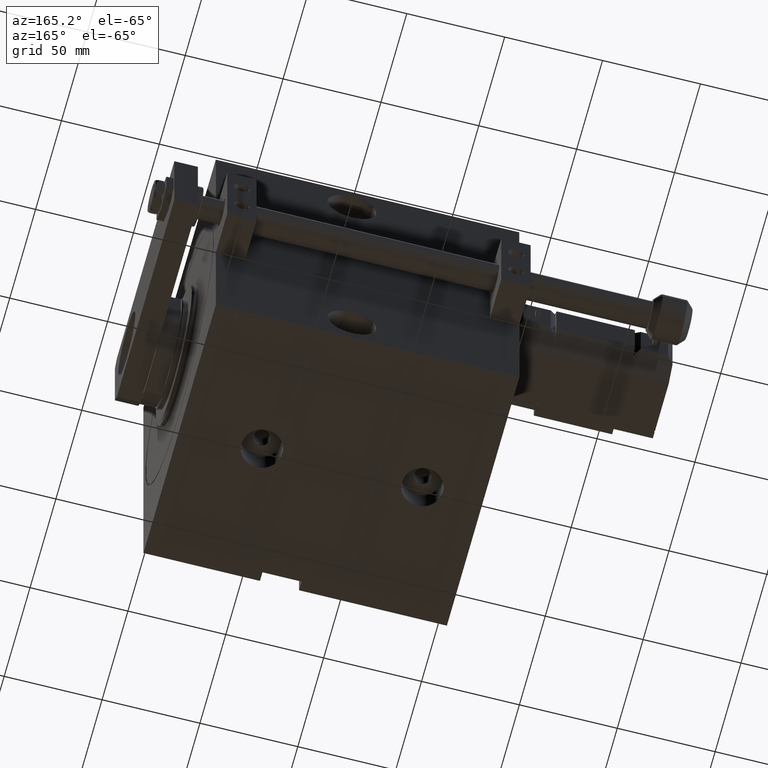
[diagram: clean part render]
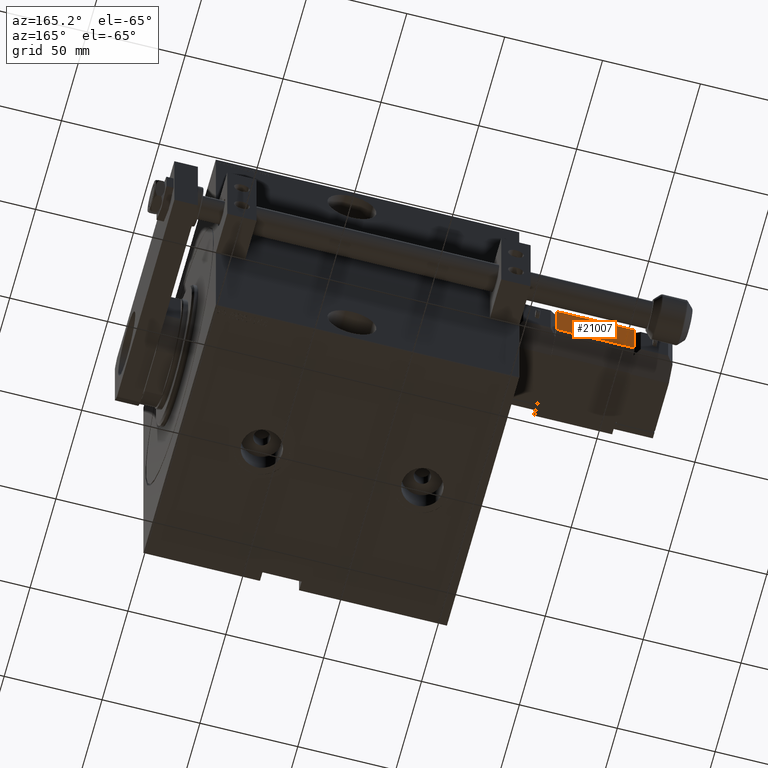
[diagram: same view with one face highlighted and labeled with its STEP entity id]
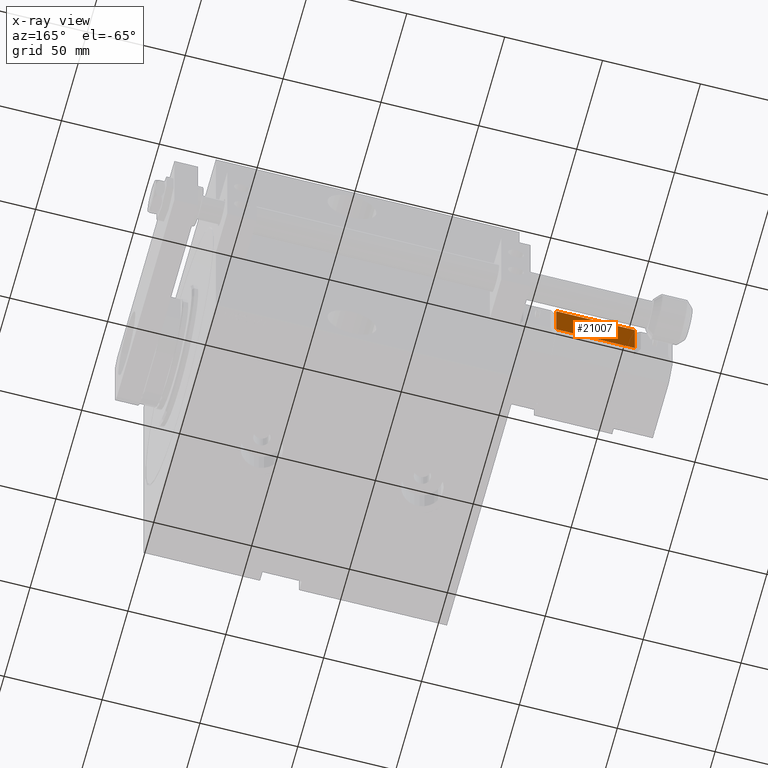
[diagram: x-ray of the same camera — body ghosted, the highlighted face saturated]
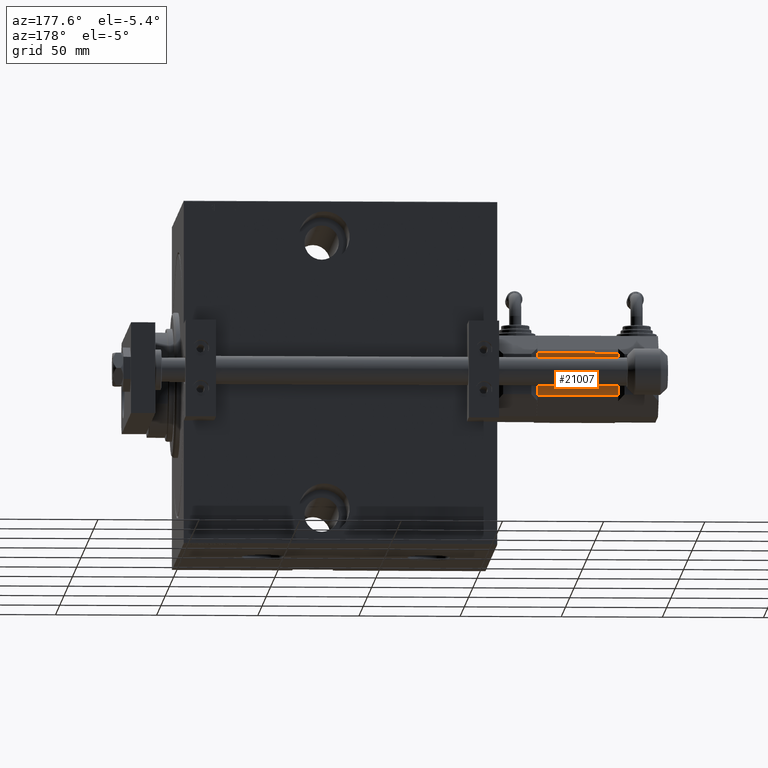
[diagram: same view with one face highlighted and labeled with its STEP entity id]
A machine part, auxiliary view. The second image highlights one B-rep face of the part: STEP entity #21007.
The next image is the same camera in x-ray: the body ghosted, the highlighted face saturated — about 0% of this face is hidden behind the body in this view.
A second angle (auxiliary view) of the same face is appended — the face is thin or edge-on in the first view.
In plain terms, the highlighted planar face has unit normal (0, -1, 0).
Its self-contained STEP definition (entity closure, byte-faithful):
#1265 = VECTOR ( 'NONE', #49139, 1000.000000000000000 ) ;
#1801 = AXIS2_PLACEMENT_3D ( 'NONE', #38108, #3489, #18899 ) ;
#2382 = ORIENTED_EDGE ( 'NONE', *, *, #33044, .T. ) ;
#3489 = DIRECTION ( 'NONE',  ( -8.673617379884035472E-17, -1.000000000000000000, 0.000000000000000000 ) ) ;
#8923 = VERTEX_POINT ( 'NONE', #22558 ) ;
#10317 = CARTESIAN_POINT ( 'NONE',  ( -20.00000000000000000, 22.00000000000000000, 40.00000000000000000 ) ) ;
#11481 = LINE ( 'NONE', #19049, #1265 ) ;
#12900 = CARTESIAN_POINT ( 'NONE',  ( 10.49999999999997868, 21.99999999999999645, 40.00000000000000000 ) ) ;
#13280 = LINE ( 'NONE', #41052, #18970 ) ;
#14710 = EDGE_LOOP ( 'NONE', ( #22143, #2382, #15476, #39971 ) ) ;
#14715 = CARTESIAN_POINT ( 'NONE',  ( -10.49999999999996270, 22.00000000000000000, 40.00000000000000000 ) ) ;
#15476 = ORIENTED_EDGE ( 'NONE', *, *, #47597, .F. ) ;
#18899 = DIRECTION ( 'NONE',  ( 1.000000000000000000, -8.673617379884035472E-17, 0.000000000000000000 ) ) ;
#18970 = VECTOR ( 'NONE', #28948, 1000.000000000000000 ) ;
#19049 = CARTESIAN_POINT ( 'NONE',  ( 10.49999999999997868, 21.99999999999999645, 40.00000000000000000 ) ) ;
#20623 = CARTESIAN_POINT ( 'NONE',  ( -10.49999999999996270, 22.00000000000000000, 0.000000000000000000 ) ) ;
#21007 = ADVANCED_FACE ( 'NONE', ( #26479 ), #22689, .F. ) ;
#22143 = ORIENTED_EDGE ( 'NONE', *, *, #31675, .T. ) ;
#22558 = CARTESIAN_POINT ( 'NONE',  ( 10.49999999999997868, 21.99999999999999645, 0.000000000000000000 ) ) ;
#22689 = PLANE ( 'NONE',  #1801 ) ;
#23611 = VECTOR ( 'NONE', #33553, 1000.000000000000000 ) ;
#24627 = DIRECTION ( 'NONE',  ( 0.000000000000000000, 0.000000000000000000, 1.000000000000000000 ) ) ;
#26479 = FACE_OUTER_BOUND ( 'NONE', #14710, .T. ) ;
#28948 = DIRECTION ( 'NONE',  ( -1.000000000000000000, 8.673617379884035472E-17, -0.000000000000000000 ) ) ;
#30356 = VERTEX_POINT ( 'NONE', #20623 ) ;
#31233 = VERTEX_POINT ( 'NONE', #12900 ) ;
#31675 = EDGE_CURVE ( 'NONE', #8923, #30356, #13280, .T. ) ;
#31765 = EDGE_CURVE ( 'NONE', #31233, #8923, #11481, .T. ) ;
#33044 = EDGE_CURVE ( 'NONE', #30356, #33217, #44084, .T. ) ;
#33217 = VERTEX_POINT ( 'NONE', #14715 ) ;
#33553 = DIRECTION ( 'NONE',  ( -1.000000000000000000, 8.673617379884035472E-17, -0.000000000000000000 ) ) ;
#38108 = CARTESIAN_POINT ( 'NONE',  ( -20.00000000000000000, 22.00000000000000000, 40.00000000000000000 ) ) ;
#39971 = ORIENTED_EDGE ( 'NONE', *, *, #31765, .T. ) ;
#41052 = CARTESIAN_POINT ( 'NONE',  ( -20.00000000000000000, 22.00000000000000000, 0.000000000000000000 ) ) ;
#43837 = CARTESIAN_POINT ( 'NONE',  ( -10.49999999999996270, 22.00000000000000000, 40.00000000000000000 ) ) ;
#44084 = LINE ( 'NONE', #43837, #47277 ) ;
#44932 = LINE ( 'NONE', #10317, #23611 ) ;
#47277 = VECTOR ( 'NONE', #24627, 1000.000000000000000 ) ;
#47597 = EDGE_CURVE ( 'NONE', #31233, #33217, #44932, .T. ) ;
#49139 = DIRECTION ( 'NONE',  ( 0.000000000000000000, 0.000000000000000000, -1.000000000000000000 ) ) ;